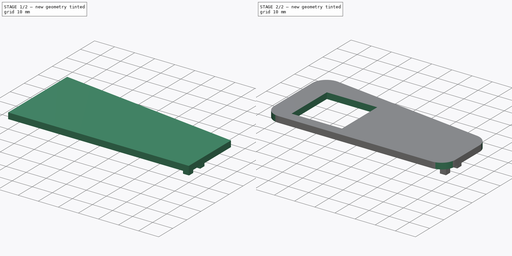
[diagram: build sequence overview — one tinted view per stage of 2, left to right]
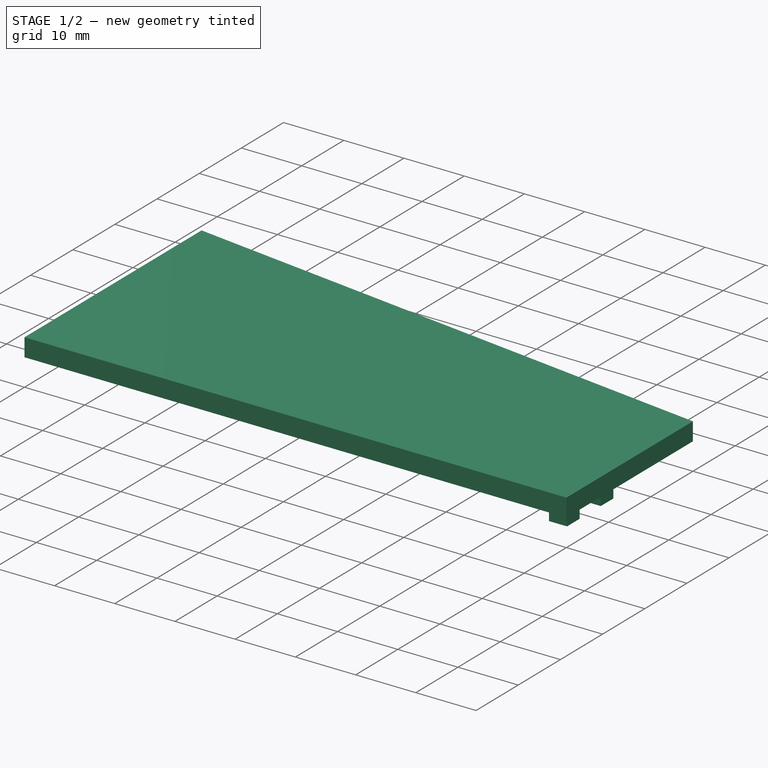
[diagram: stage 1 of 2 — iso view after this stage's code; geometry added in this stage tinted green]
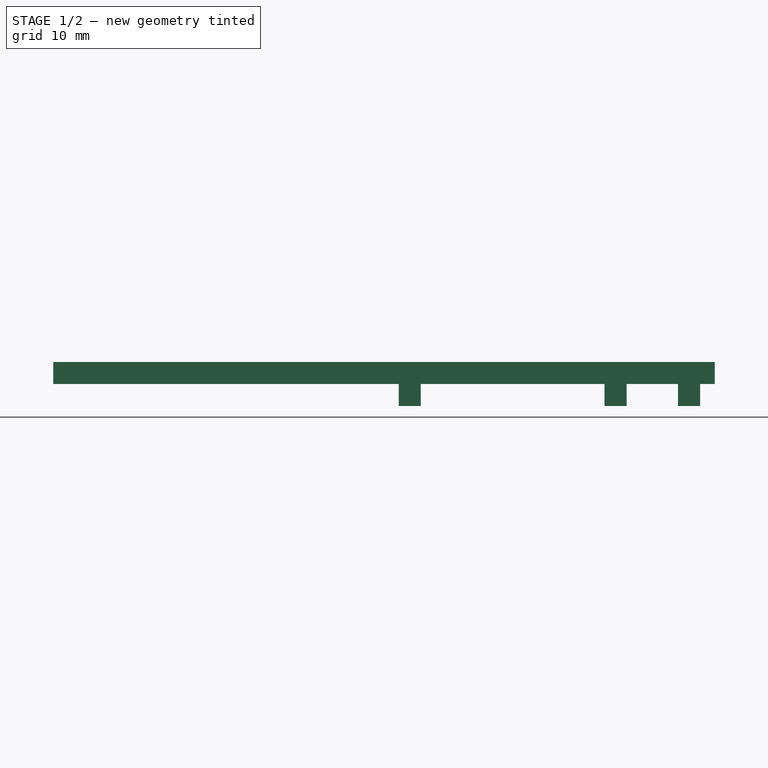
[diagram: stage 1 of 2 — front view after this stage's code; geometry added in this stage tinted green]
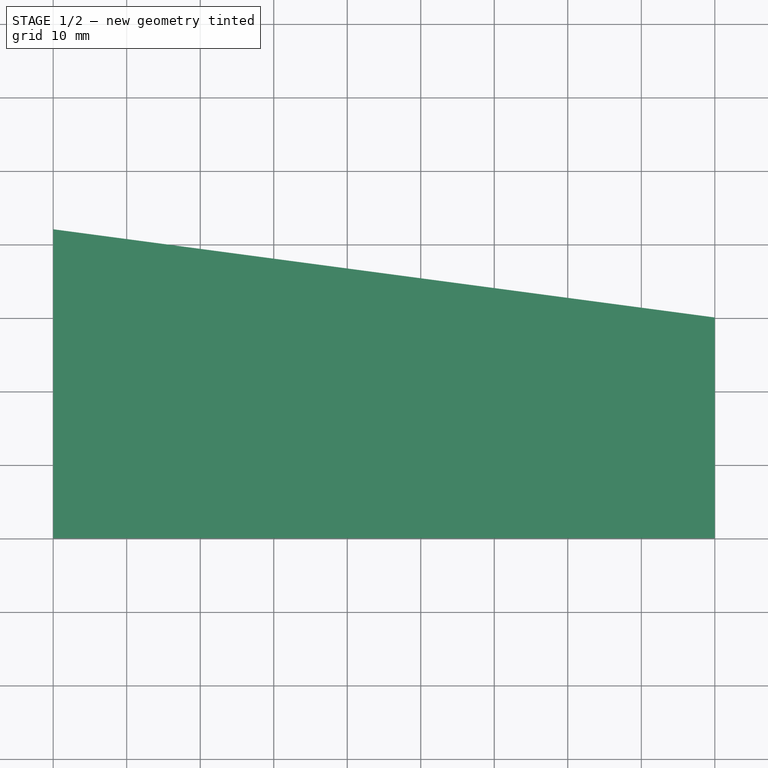
[diagram: stage 1 of 2 — top view after this stage's code; geometry added in this stage tinted green]
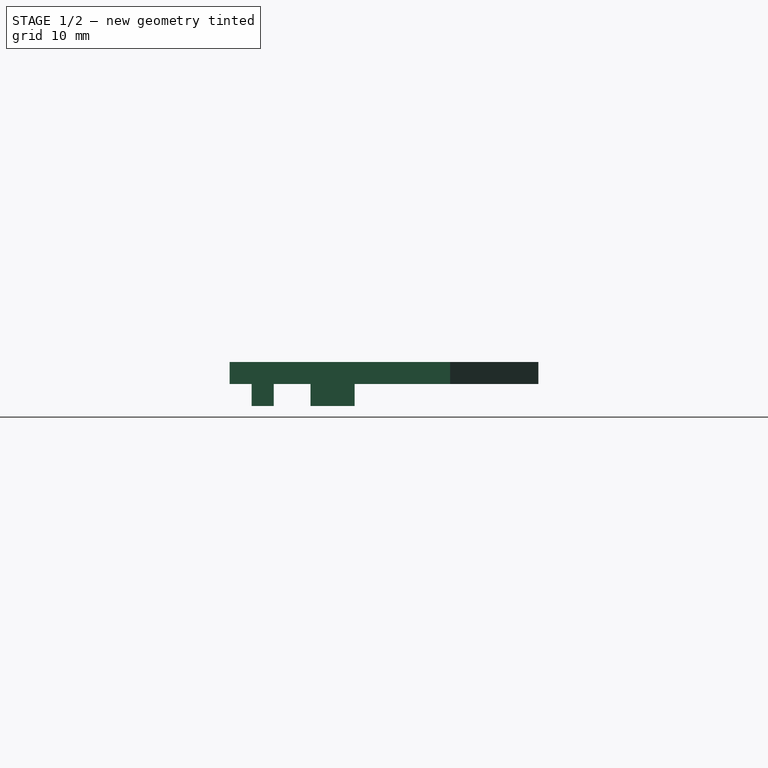
[diagram: stage 1 of 2 — right view after this stage's code; geometry added in this stage tinted green]
FCSTD DOCUMENT  (FreeCAD 1.0R39319 (Git))
Label: seitenverkleidung_rechts
License: All rights reserved
LicenseURL: https://en.wikipedia.org/wiki/All_rights_reserved
objects: Sketcher::SketchObject×3, PartDesign::Pad×2, PartDesign::Fillet×1, PartDesign::Pocket×1, PartDesign::Body×1
note: 19 computed .brp shape members not serialized (recipe doc carries the construction recipe); baked Part::Feature solids carry a one-line shape summary decoded from their .brp

FEATURE [Sketcher::SketchObject] Sketch
  ArcFitTolerance = 1e-06
  AttachmentSupport = -> [XY_Plane]
  FullyConstrained = true
  MakeInternals = false
  MapMode = 5
  sketch-geometry (4):
    g0: LineSegment StartX=0 StartY=42 StartZ=0 EndX=0 EndY=0 EndZ=0
    g1: LineSegment StartX=0 StartY=0 StartZ=0 EndX=90 EndY=0 EndZ=0
    g2: LineSegment StartX=90 StartY=0 StartZ=0 EndX=90 EndY=30 EndZ=0
    g3: LineSegment StartX=90 StartY=30 StartZ=0 EndX=0 EndY=42 EndZ=0
  constraints (11):
    c: Vertical(g0)
    c: Coincident(g0,g1)
    c: Horizontal(g1)
    c: Coincident(g1,g2)
    c: Vertical(g2)
    c: Coincident(g2,g3)
    c: Coincident(g3,g0)
    c: Coincident(g0,g-1)
    c: DistanceX(g1,g1) = 90
    c: DistanceY(g2,g2) = 30
    c: Distance(g0,g0) = 42
FEATURE [PartDesign::Pad] Pad
  Direction = (0,0,1)
  Length = 3
  Length2 = 10
  Profile = -> Sketch
  ReferenceAxis = -> Sketch [N_Axis]
  Refine = true
  Suppressed = false
  Type = 0
FEATURE [Sketcher::SketchObject] Sketch001
  ArcFitTolerance = 1e-06
  AttachmentSupport = -> [Pad]
  ExternalGeometry = -> [Pad]
  FullyConstrained = true
  MakeInternals = false
  MapMode = 5
  Placement = pos=(0,0,0) rot=(1,0,0;3.14159rad)
  sketch-geometry (16):
    g0: LineSegment StartX=88 StartY=-3 StartZ=0 EndX=85 EndY=-3 EndZ=0
    g1: LineSegment StartX=85 StartY=-3 StartZ=0 EndX=85 EndY=-6 EndZ=0
    g2: LineSegment StartX=85 StartY=-6 StartZ=0 EndX=88 EndY=-6 EndZ=0
    g3: LineSegment StartX=88 StartY=-6 StartZ=0 EndX=88 EndY=-3 EndZ=0
    g4: LineSegment StartX=88 StartY=-11 StartZ=0 EndX=85 EndY=-11 EndZ=0
    g5: LineSegment StartX=85 StartY=-11 StartZ=0 EndX=85 EndY=-14 EndZ=0
    g6: LineSegment StartX=85 StartY=-14 StartZ=0 EndX=88 EndY=-14 EndZ=0
    g7: LineSegment StartX=88 StartY=-14 StartZ=0 EndX=88 EndY=-11 EndZ=0
    g8: LineSegment StartX=78 StartY=-17 StartZ=0 EndX=75 EndY=-17 EndZ=0
    g9: LineSegment StartX=75 StartY=-17 StartZ=0 EndX=75 EndY=-14 EndZ=0
    g10: LineSegment StartX=75 StartY=-14 StartZ=0 EndX=78 EndY=-14 EndZ=0
    g11: LineSegment StartX=78 StartY=-14 StartZ=0 EndX=78 EndY=-17 EndZ=0
    g12: LineSegment StartX=47 StartY=-17 StartZ=0 EndX=50 EndY=-17 EndZ=0
    g13: LineSegment StartX=50 StartY=-17 StartZ=0 EndX=50 EndY=-14 EndZ=0
    g14: LineSegment StartX=50 StartY=-14 StartZ=0 EndX=47 EndY=-14 EndZ=0
    g15: LineSegment StartX=47 StartY=-14 StartZ=0 EndX=47 EndY=-17 EndZ=0
  constraints (48):
    c: Coincident(g0,g1)
    c: Coincident(g1,g2)
    c: Coincident(g2,g3)
    c: Coincident(g3,g0)
    c: Horizontal(g0)
    c: Horizontal(g2)
    c: Vertical(g1)
    c: Vertical(g3)
    c: Distance(g1,g3) = 3
    c: Distance(g0,g2) = 3
    c: Coincident(g4,g5)
    c: Coincident(g5,g6)
    c: Coincident(g6,g7)
    c: Coincident(g7,g4)
    c: Horizontal(g4)
    c: Horizontal(g6)
    c: Vertical(g5)
    c: Vertical(g7)
    c: Distance(g5,g7) = 3
    c: Distance(g4,g6) = 3
    c: Coincident(g8,g9)
    c: Coincident(g9,g10)
    c: Coincident(g10,g11)
    c: Coincident(g11,g8)
    c: Horizontal(g8)
    c: Horizontal(g10)
    c: Vertical(g9)
    c: Vertical(g11)
    c: Distance(g9,g11) = 3
    c: Distance(g8,g10) = 3
    c: DistanceY(g4,g1) = 5
    c: DistanceX(g8,g5) = 10
    c: DistanceX(g1,g4) = 3
    c: DistanceY(g9,g4) = 3
    c: Distance(g0,g-1) = 3
    c: Distance(g0,g-4) = 2
    c: Coincident(g12,g13)
    c: Coincident(g13,g14)
    c: Coincident(g14,g15)
    c: Coincident(g15,g12)
    c: Horizontal(g12)
    c: Horizontal(g14)
    c: Vertical(g13)
    c: Vertical(g15)
    c: Distance(g13,g15) = 3
    c: Distance(g12,g14) = 3
    c: DistanceX(g14,g8) = 31
    c: DistanceY(g8,g13) = 3
FEATURE [PartDesign::Pad] Pad001
  BaseFeature = -> Pad
  Direction = (0,0,-1)
  Length = 3
  Length2 = 10
  Profile = -> Sketch001
  ReferenceAxis = -> Sketch001 [N_Axis]
  Refine = true
  Suppressed = false
  Type = 0
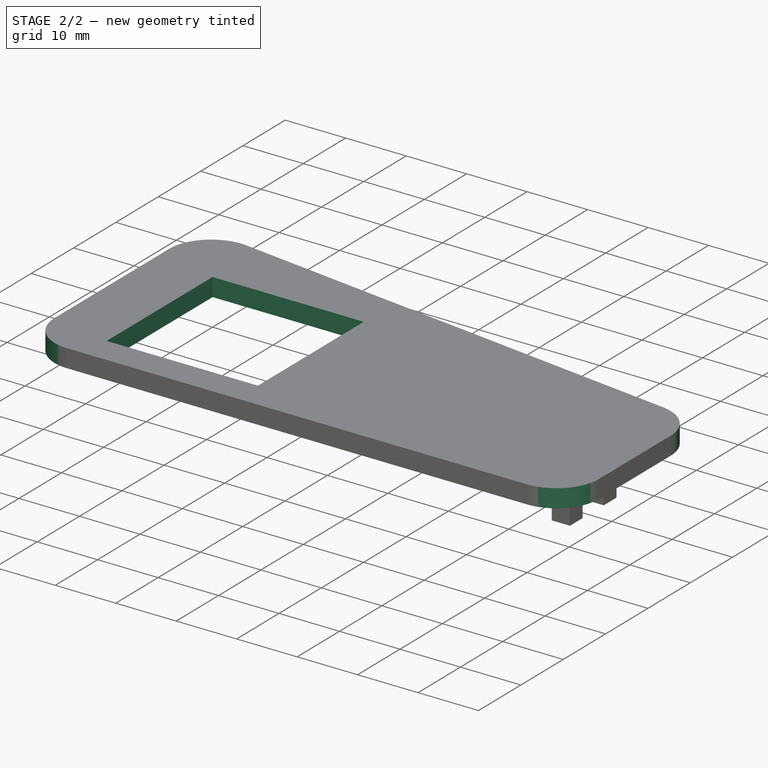
[diagram: stage 2 of 2 — iso view after this stage's code; geometry added in this stage tinted green]
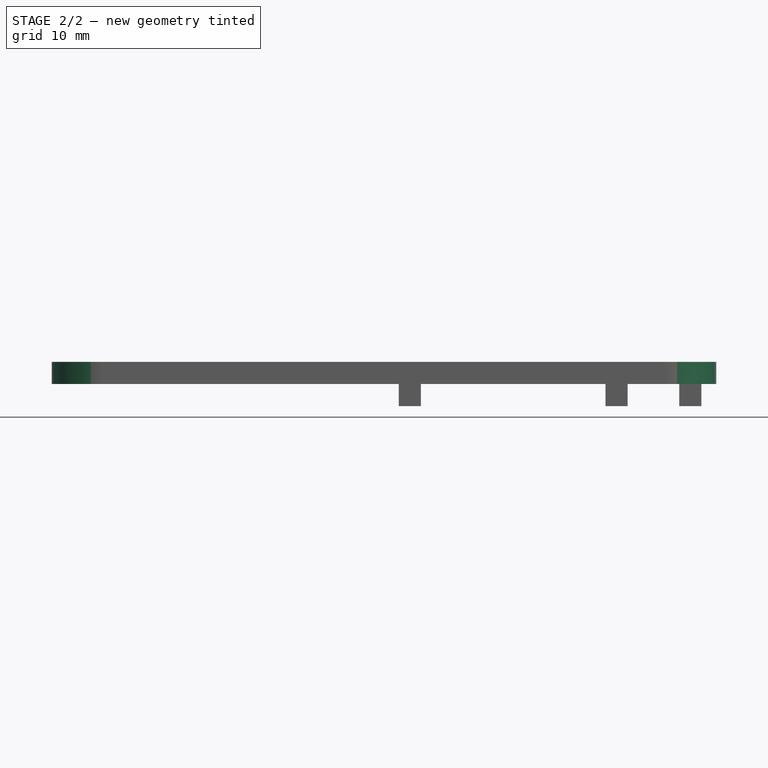
[diagram: stage 2 of 2 — front view after this stage's code; geometry added in this stage tinted green]
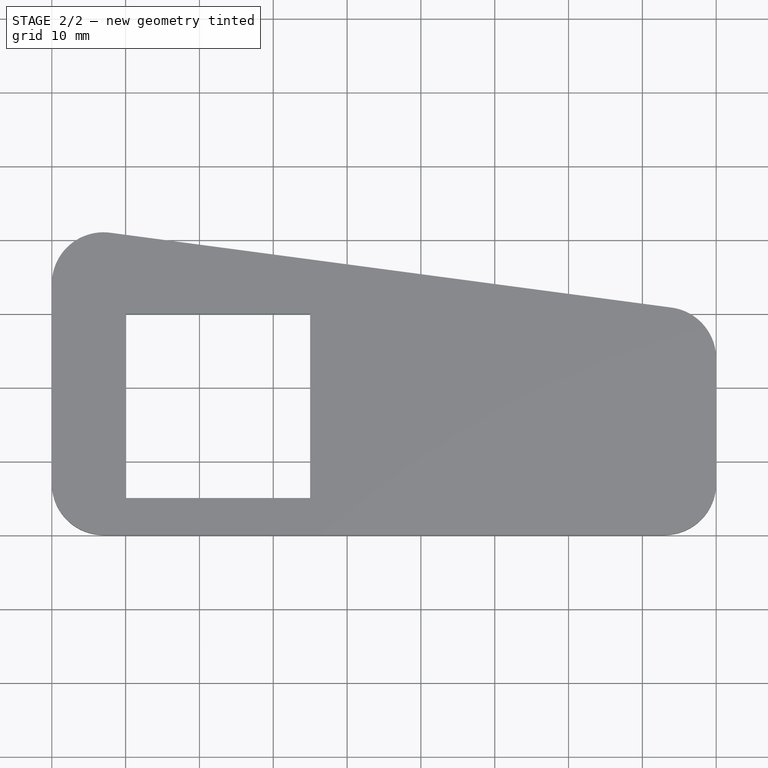
[diagram: stage 2 of 2 — top view after this stage's code; geometry added in this stage tinted green]
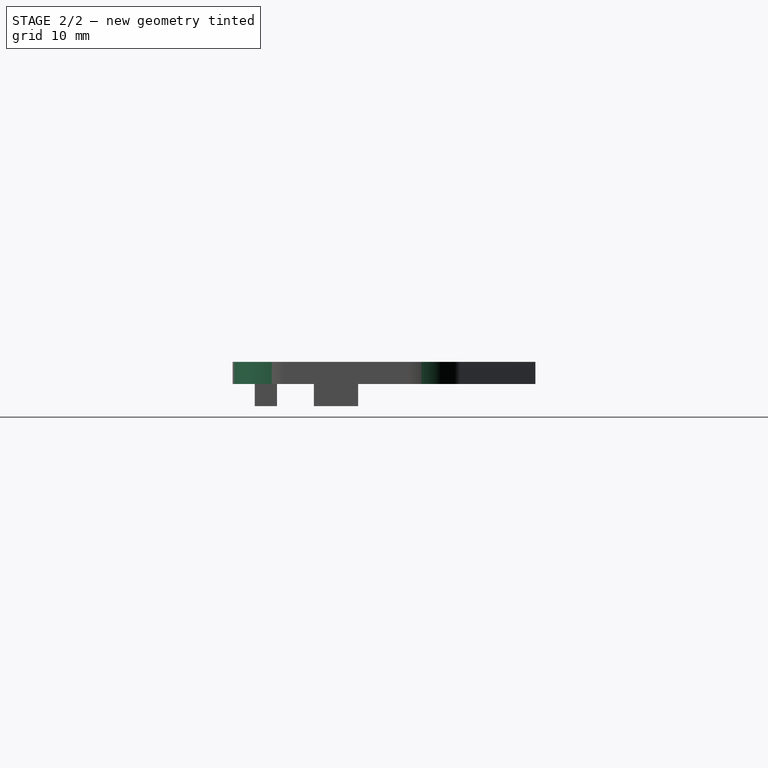
[diagram: stage 2 of 2 — right view after this stage's code; geometry added in this stage tinted green]
FEATURE [PartDesign::Fillet] Fillet
  Base = -> Pad001 [Edge1,Edge2,Edge8,Edge5]
  BaseFeature = -> Pad001
  Radius = 7
  Refine = true
  SupportTransform = false
  Suppressed = false
  UseAllEdges = false
FEATURE [Sketcher::SketchObject] Sketch002
  ArcFitTolerance = 1e-06
  AttachmentSupport = -> [Fillet]
  FullyConstrained = true
  MakeInternals = false
  MapMode = 5
  Placement = pos=(0,0,0) rot=(1,0,0;3.14159rad)
  sketch-geometry (4):
    g0: LineSegment StartX=10 StartY=-5 StartZ=0 EndX=10 EndY=-30 EndZ=0
    g1: LineSegment StartX=10 StartY=-30 StartZ=0 EndX=35 EndY=-30 EndZ=0
    g2: LineSegment StartX=35 StartY=-30 StartZ=0 EndX=35 EndY=-5 EndZ=0
    g3: LineSegment StartX=35 StartY=-5 StartZ=0 EndX=10 EndY=-5 EndZ=0
  constraints (12):
    c: Coincident(g0,g1)
    c: Coincident(g1,g2)
    c: Coincident(g2,g3)
    c: Coincident(g3,g0)
    c: Vertical(g0)
    c: Vertical(g2)
    c: Horizontal(g1)
    c: Horizontal(g3)
    c: Distance(g0,g2) = 25
    c: Distance(g1,g3) = 25
    c: Distance(g2,g-1) = 5
    c: Distance(g0,g-2) = 10
FEATURE [PartDesign::Pocket] Pocket
  BaseFeature = -> Fillet
  Direction = (0,0,1)
  Length = 5
  Length2 = 5
  Profile = -> Sketch002
  ReferenceAxis = -> Sketch002 [N_Axis]
  Refine = true
  Suppressed = false
  Type = 0
FEATURE [PartDesign::Body] Body
  AllowCompound = false
  Group = -> [Sketch,Pad,Sketch001,Pad001,Fillet,Sketch002,Pocket]
  Origin = -> Origin
  Tip = -> Pocket
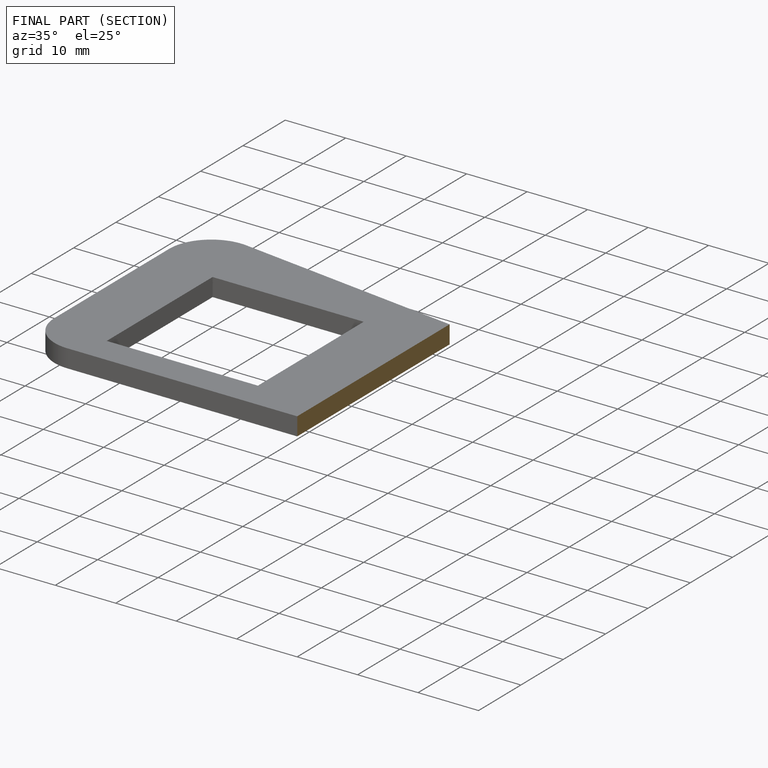
[diagram: finished part — half-section view (interior)]
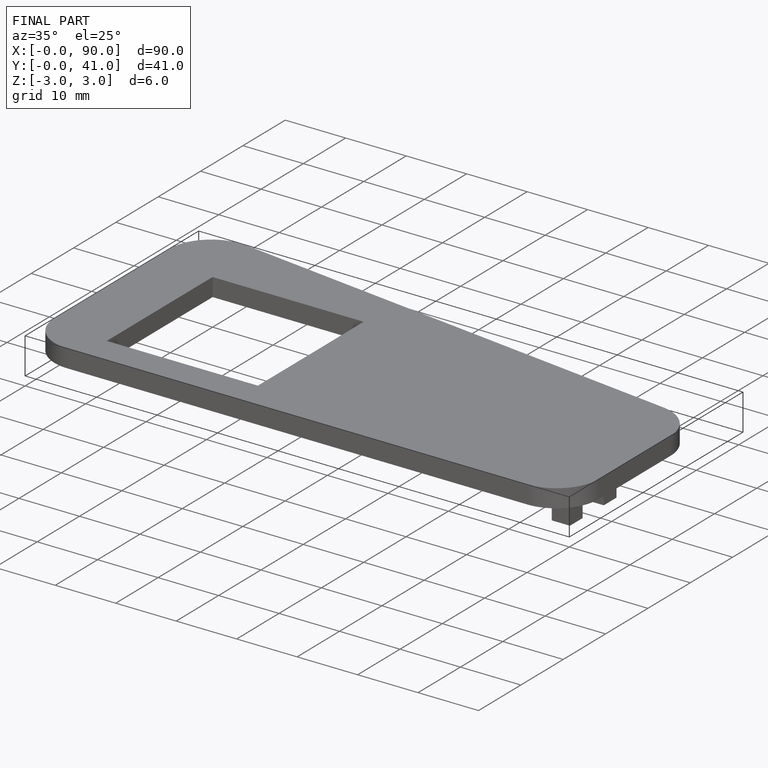
[diagram: finished part — iso view with bounding-box wireframe]
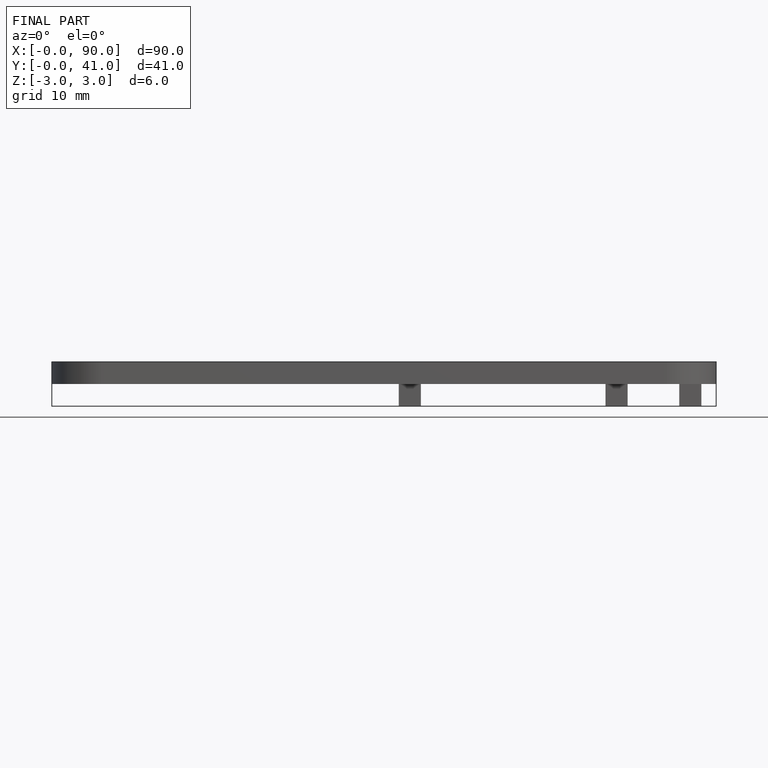
[diagram: finished part — front view with bounding-box wireframe]
